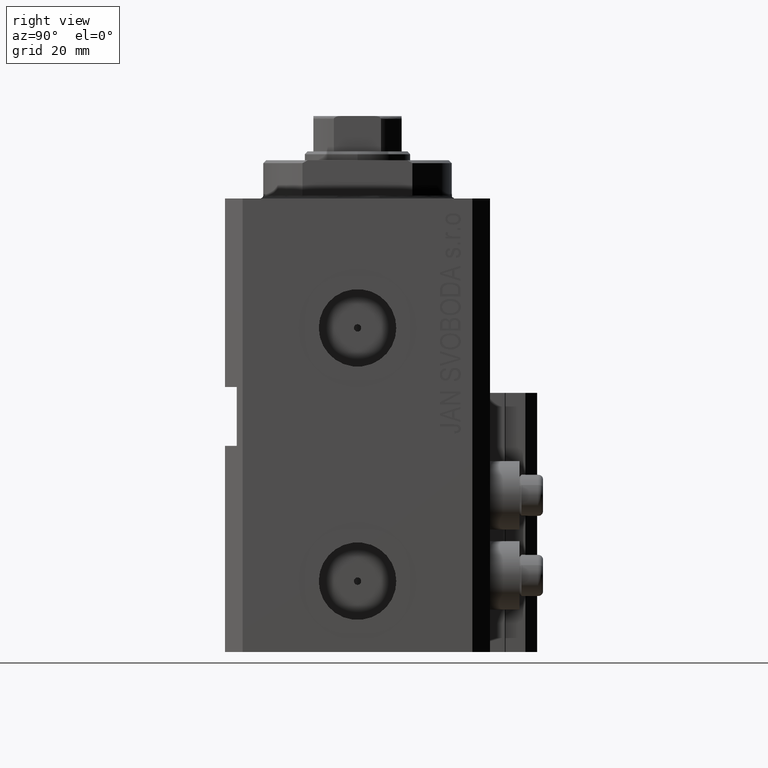
[diagram: clean part render]
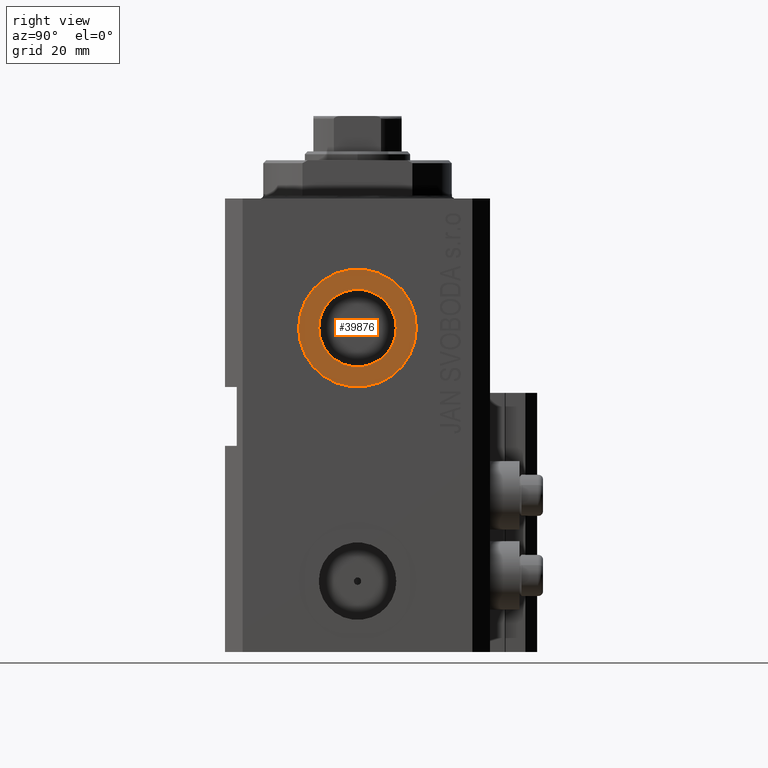
[diagram: same view with one face highlighted and labeled with its STEP entity id]
A machine part, right view. The second image highlights one B-rep face of the part: STEP entity #39876.
In plain terms, the highlighted planar face has unit normal (1, -0, 0).
Its self-contained STEP definition (entity closure, byte-faithful):
#2768 = EDGE_LOOP ( 'NONE', ( #12696, #6708 ) ) ;
#2843 = EDGE_CURVE ( 'NONE', #5682, #23261, #17130, .T. ) ;
#2887 = DIRECTION ( 'NONE',  ( 1.318389841742373392E-14, 1.000000000000000000, 0.000000000000000000 ) ) ;
#4183 = AXIS2_PLACEMENT_3D ( 'NONE', #39863, #14336, #2887 ) ;
#5682 = VERTEX_POINT ( 'NONE', #24115 ) ;
#6708 = ORIENTED_EDGE ( 'NONE', *, *, #37420, .T. ) ;
#8898 = PLANE ( 'NONE',  #21813 ) ;
#9078 = CARTESIAN_POINT ( 'NONE',  ( 32.39999999999677271, -4.323464663203420381E-13, -22.00000000000000000 ) ) ;
#9521 = CARTESIAN_POINT ( 'NONE',  ( 32.39999999999668034, -6.580000000000433502, -22.00000000000000000 ) ) ;
#11879 = AXIS2_PLACEMENT_3D ( 'NONE', #43998, #18463, #32327 ) ;
#12005 = CARTESIAN_POINT ( 'NONE',  ( 32.39999999999677271, -4.323464663203420381E-13, -22.00000000000000000 ) ) ;
#12696 = ORIENTED_EDGE ( 'NONE', *, *, #29963, .T. ) ;
#14171 = CIRCLE ( 'NONE', #11879, 6.580000000000002736 ) ;
#14336 = DIRECTION ( 'NONE',  ( 1.000000000000000000, -1.334402673828349134E-14, 0.000000000000000000 ) ) ;
#16118 = VERTEX_POINT ( 'NONE', #36860 ) ;
#17017 = FACE_OUTER_BOUND ( 'NONE', #2768, .T. ) ;
#17130 = CIRCLE ( 'NONE', #28568, 6.580000000000002736 ) ;
#18463 = DIRECTION ( 'NONE',  ( 1.000000000000000000, -1.334402673828349134E-14, 0.000000000000000000 ) ) ;
#20367 = CARTESIAN_POINT ( 'NONE',  ( 32.39999999999677271, -4.323464663203420381E-13, -22.00000000000000000 ) ) ;
#21198 = VERTEX_POINT ( 'NONE', #23867 ) ;
#21813 = AXIS2_PLACEMENT_3D ( 'NONE', #20367, #45414, #46116 ) ;
#22668 = ORIENTED_EDGE ( 'NONE', *, *, #2843, .F. ) ;
#23261 = VERTEX_POINT ( 'NONE', #9521 ) ;
#23867 = CARTESIAN_POINT ( 'NONE',  ( 32.39999999999663771, -10.00000000000043165, -22.00000000000000000 ) ) ;
#24115 = CARTESIAN_POINT ( 'NONE',  ( 32.39999999999686509, 6.579999999999570193, -22.00000000000000000 ) ) ;
#27045 = DIRECTION ( 'NONE',  ( 1.370906090437597808E-14, 1.000000000000000000, 0.000000000000000000 ) ) ;
#28568 = AXIS2_PLACEMENT_3D ( 'NONE', #12005, #31117, #27045 ) ;
#29963 = EDGE_CURVE ( 'NONE', #16118, #21198, #44975, .T. ) ;
#31117 = DIRECTION ( 'NONE',  ( 1.000000000000000000, -1.334402673828349134E-14, 0.000000000000000000 ) ) ;
#31566 = FACE_BOUND ( 'NONE', #42761, .T. ) ;
#32327 = DIRECTION ( 'NONE',  ( 1.370906090437597808E-14, 1.000000000000000000, 0.000000000000000000 ) ) ;
#33950 = CIRCLE ( 'NONE', #4183, 10.00000000000000000 ) ;
#34323 = AXIS2_PLACEMENT_3D ( 'NONE', #9078, #34621, #45595 ) ;
#34621 = DIRECTION ( 'NONE',  ( 1.000000000000000000, -1.334402673828349134E-14, 0.000000000000000000 ) ) ;
#36860 = CARTESIAN_POINT ( 'NONE',  ( 32.39999999999690061, 9.999999999999568345, -22.00000000000000000 ) ) ;
#37420 = EDGE_CURVE ( 'NONE', #21198, #16118, #33950, .T. ) ;
#39335 = ORIENTED_EDGE ( 'NONE', *, *, #39456, .F. ) ;
#39456 = EDGE_CURVE ( 'NONE', #23261, #5682, #14171, .T. ) ;
#39863 = CARTESIAN_POINT ( 'NONE',  ( 32.39999999999677271, -4.323464663203420381E-13, -22.00000000000000000 ) ) ;
#39876 = ADVANCED_FACE ( 'NONE', ( #31566, #17017 ), #8898, .T. ) ;
#42761 = EDGE_LOOP ( 'NONE', ( #22668, #39335 ) ) ;
#43998 = CARTESIAN_POINT ( 'NONE',  ( 32.39999999999677271, -4.323464663203420381E-13, -22.00000000000000000 ) ) ;
#44975 = CIRCLE ( 'NONE', #34323, 10.00000000000000000 ) ;
#45414 = DIRECTION ( 'NONE',  ( 1.000000000000000000, -1.334402673828349134E-14, 0.000000000000000000 ) ) ;
#45595 = DIRECTION ( 'NONE',  ( 1.318389841742373392E-14, 1.000000000000000000, 0.000000000000000000 ) ) ;
#46116 = DIRECTION ( 'NONE',  ( 1.334402673828349134E-14, 1.000000000000000000, 0.000000000000000000 ) ) ;